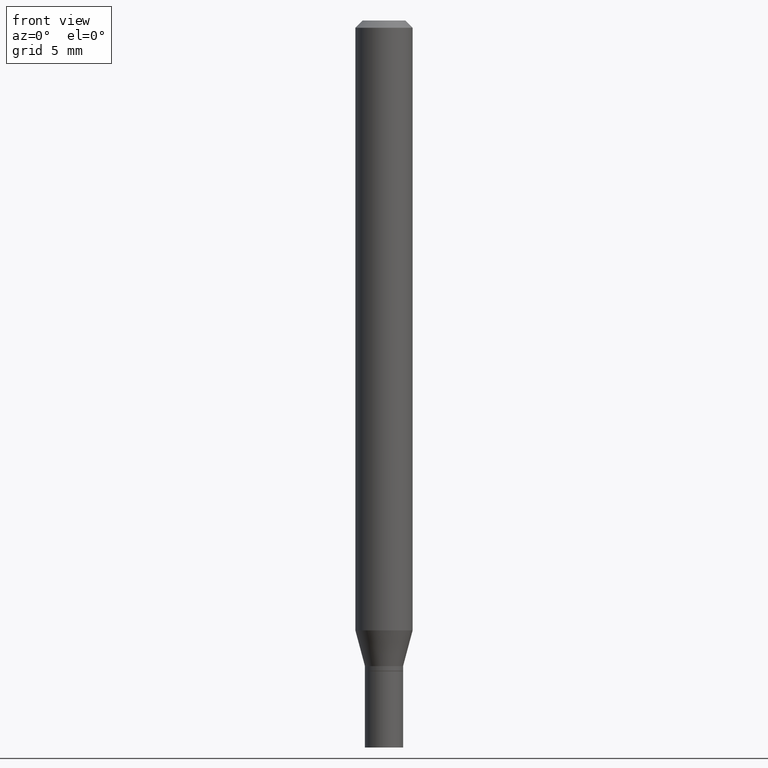
[diagram: clean part render]
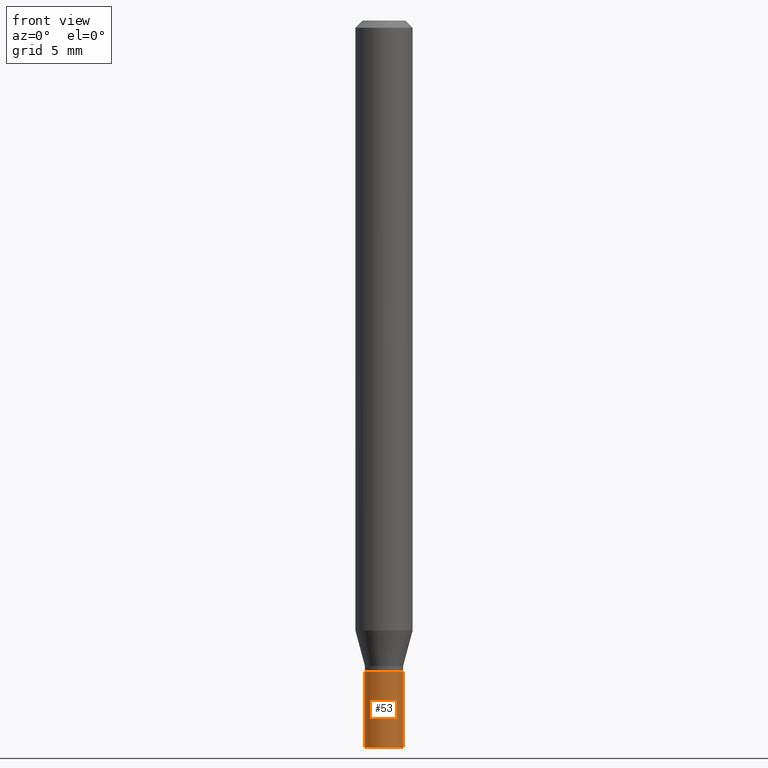
[diagram: same view with one face highlighted and labeled with its STEP entity id]
A machine part, front view. The second image highlights one B-rep face of the part: STEP entity #53.
In plain terms, the highlighted cylindrical surface (edge-blend (fillet) strip) has radius 0.9995 mm, axis along (-0, 0, 1).
Its self-contained STEP definition (entity closure, byte-faithful):
#2 = AXIS2_PLACEMENT_3D ( 'NONE', #194, #224, #183 ) ;
#16 = ORIENTED_EDGE ( 'NONE', *, *, #290, .F. ) ;
#17 = LINE ( 'NONE', #86, #462 ) ;
#26 = DIRECTION ( 'NONE',  ( 1.000000000000000000, -6.982962677686266711E-15, 4.876176775795936353E-29 ) ) ;
#28 = VECTOR ( 'NONE', #185, 39.37007874015748143 ) ;
#30 = VERTEX_POINT ( 'NONE', #276 ) ;
#40 = CIRCLE ( 'NONE', #227, 0.03935000000000000303 ) ;
#53 = ADVANCED_FACE ( 'NONE', ( #385 ), #354, .T. ) ;
#86 = CARTESIAN_POINT ( 'NONE',  ( -0.03935000000000000303, 2.795985665215994447E-16, -1.935600958015305291E-30 ) ) ;
#88 = DIRECTION ( 'NONE',  ( -2.445468806185136877E-29, 3.491481338843145188E-15, 1.000000000000000000 ) ) ;
#118 = DIRECTION ( 'NONE',  ( -2.445468806185136597E-29, 3.491481338843145583E-15, 1.000000000000000000 ) ) ;
#130 = ORIENTED_EDGE ( 'NONE', *, *, #336, .T. ) ;
#155 = VERTEX_POINT ( 'NONE', #368 ) ;
#163 = AXIS2_PLACEMENT_3D ( 'NONE', #173, #320, #26 ) ;
#173 = CARTESIAN_POINT ( 'NONE',  ( 0.000000000000000000, 0.000000000000000000, 0.000000000000000000 ) ) ;
#183 = DIRECTION ( 'NONE',  ( 1.000000000000000000, -6.982962677686269077E-15, 0.000000000000000000 ) ) ;
#185 = DIRECTION ( 'NONE',  ( -2.445468806185136877E-29, 3.491481338843145188E-15, 1.000000000000000000 ) ) ;
#193 = EDGE_LOOP ( 'NONE', ( #16, #130, #449, #207 ) ) ;
#194 = CARTESIAN_POINT ( 'NONE',  ( 3.283041872303546419E-29, -4.687313697396923253E-15, -1.342500000000000249 ) ) ;
#207 = ORIENTED_EDGE ( 'NONE', *, *, #283, .F. ) ;
#222 = CARTESIAN_POINT ( 'NONE',  ( 3.668203209277704895E-29, -5.237222008264718177E-15, -1.500000000000000222 ) ) ;
#224 = DIRECTION ( 'NONE',  ( -2.445468806185136597E-29, 3.491481338843145583E-15, 1.000000000000000000 ) ) ;
#227 = AXIS2_PLACEMENT_3D ( 'NONE', #222, #118, #342 ) ;
#229 = LINE ( 'NONE', #441, #28 ) ;
#231 = CARTESIAN_POINT ( 'NONE',  ( -0.03935000000000000303, -4.682669286309222109E-15, -1.500000000000000222 ) ) ;
#268 = VERTEX_POINT ( 'NONE', #231 ) ;
#276 = CARTESIAN_POINT ( 'NONE',  ( 0.03935000000000000303, -4.962093278763878170E-15, -1.342500000000000249 ) ) ;
#283 = EDGE_CURVE ( 'NONE', #466, #30, #284, .T. ) ;
#284 = CIRCLE ( 'NONE', #2, 0.03935000000000000303 ) ;
#290 = EDGE_CURVE ( 'NONE', #268, #466, #17, .T. ) ;
#316 = CARTESIAN_POINT ( 'NONE',  ( -0.03935000000000000303, -4.682669286309222109E-15, -1.342500000000000249 ) ) ;
#320 = DIRECTION ( 'NONE',  ( -2.445468806185136597E-29, 3.491481338843145583E-15, 1.000000000000000000 ) ) ;
#336 = EDGE_CURVE ( 'NONE', #268, #155, #40, .T. ) ;
#342 = DIRECTION ( 'NONE',  ( 1.000000000000000000, -6.982962677686269077E-15, 0.000000000000000000 ) ) ;
#350 = EDGE_CURVE ( 'NONE', #155, #30, #229, .T. ) ;
#354 = CYLINDRICAL_SURFACE ( 'NONE', #163, 0.03935000000000000303 ) ;
#368 = CARTESIAN_POINT ( 'NONE',  ( 0.03935000000000000303, -5.512001589631673094E-15, -1.500000000000000222 ) ) ;
#385 = FACE_OUTER_BOUND ( 'NONE', #193, .T. ) ;
#441 = CARTESIAN_POINT ( 'NONE',  ( 0.03935000000000000303, -2.747795813669546211E-16, 1.918775561275701074E-30 ) ) ;
#449 = ORIENTED_EDGE ( 'NONE', *, *, #350, .T. ) ;
#462 = VECTOR ( 'NONE', #88, 39.37007874015748143 ) ;
#466 = VERTEX_POINT ( 'NONE', #316 ) ;